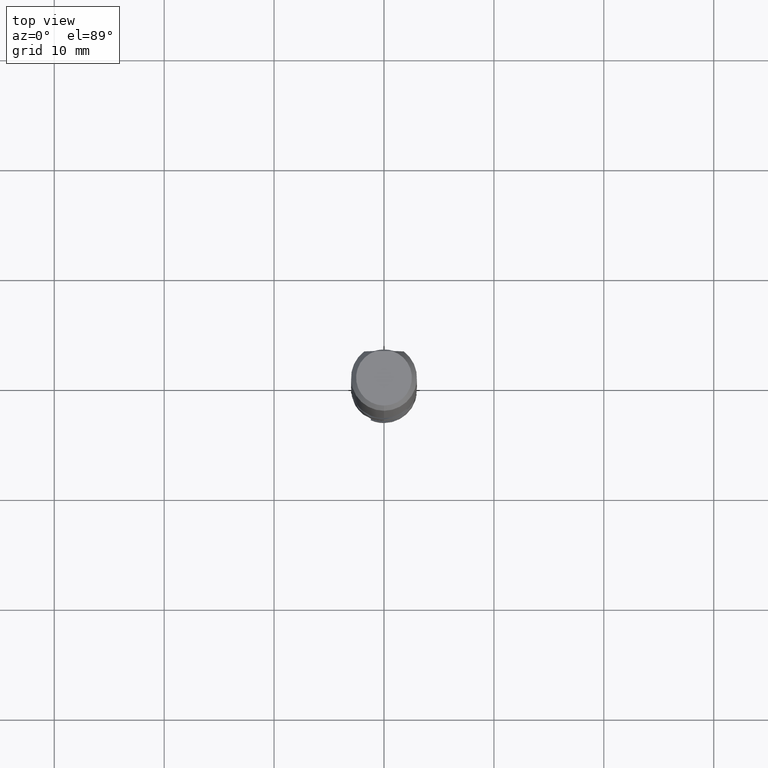
[diagram: clean part render]
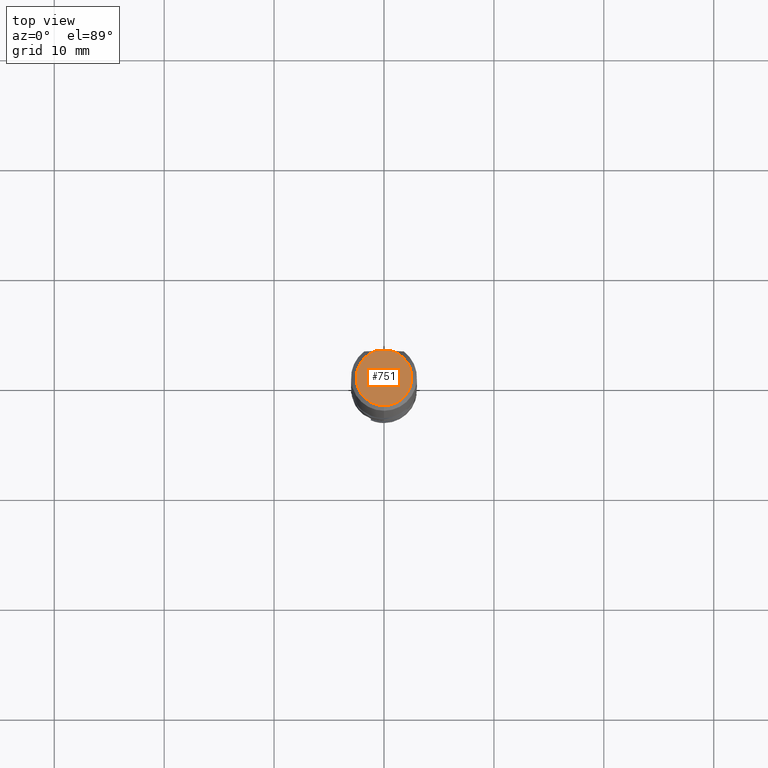
[diagram: same view with one face highlighted and labeled with its STEP entity id]
A machine part, top view. The second image highlights one B-rep face of the part: STEP entity #751.
In plain terms, the highlighted planar face has unit normal (-0, 0, 1).
Its self-contained STEP definition (entity closure, byte-faithful):
#341=EDGE_CURVE('',#387,#397,#881,.T.);
#349=EDGE_CURVE('',#387,#755,#890,.T.);
#387=VERTEX_POINT('',#937);
#397=VERTEX_POINT('',#947);
#415=EDGE_CURVE('',#755,#397,#966,.T.);
#751=ADVANCED_FACE('',(#1324),#1325,.T.);
#755=VERTEX_POINT('',#1329);
#881=LINE('',#1734,#1735);
#890=CIRCLE('',#1747,2.5381197846483);
#937=CARTESIAN_POINT('',(0.737618527549059,2.42857385085146,0.0));
#947=CARTESIAN_POINT('',(-0.737618527549059,2.42857385085146,0.0));
#966=CIRCLE('',#2590,2.5381197846483);
#1324=FACE_OUTER_BOUND('',#6417,.T.);
#1325=PLANE('',#6418);
#1329=CARTESIAN_POINT('',(3.10819761504259E-016,-2.5381197846483,0.0));
#1734=CARTESIAN_POINT('',(-1.5,2.42857385085146,0.0));
#1735=VECTOR('',#7104,1.0);
#1747=AXIS2_PLACEMENT_3D('',#7114,#7115,#7116);
#2590=AXIS2_PLACEMENT_3D('',#7227,#7228,#7229);
#6417=EDGE_LOOP('',(#7502,#7503,#7504));
#6418=AXIS2_PLACEMENT_3D('',#7505,#7506,#7507);
#7104=DIRECTION('',(-1.0,0.0,0.0));
#7114=CARTESIAN_POINT('',(0.0,0.0,0.0));
#7115=DIRECTION('',(0.0,0.0,-1.0));
#7116=DIRECTION('',(0.0,1.0,0.0));
#7227=CARTESIAN_POINT('',(0.0,0.0,0.0));
#7228=DIRECTION('',(0.0,0.0,-1.0));
#7229=DIRECTION('',(0.0,1.0,0.0));
#7502=ORIENTED_EDGE('',*,*,#341,.T.);
#7503=ORIENTED_EDGE('',*,*,#415,.F.);
#7504=ORIENTED_EDGE('',*,*,#349,.F.);
#7505=CARTESIAN_POINT('',(0.0,1.26905989232415,0.0));
#7506=DIRECTION('',(-0.0,0.0,1.0));
#7507=DIRECTION('',(0.0,-1.0,0.0));